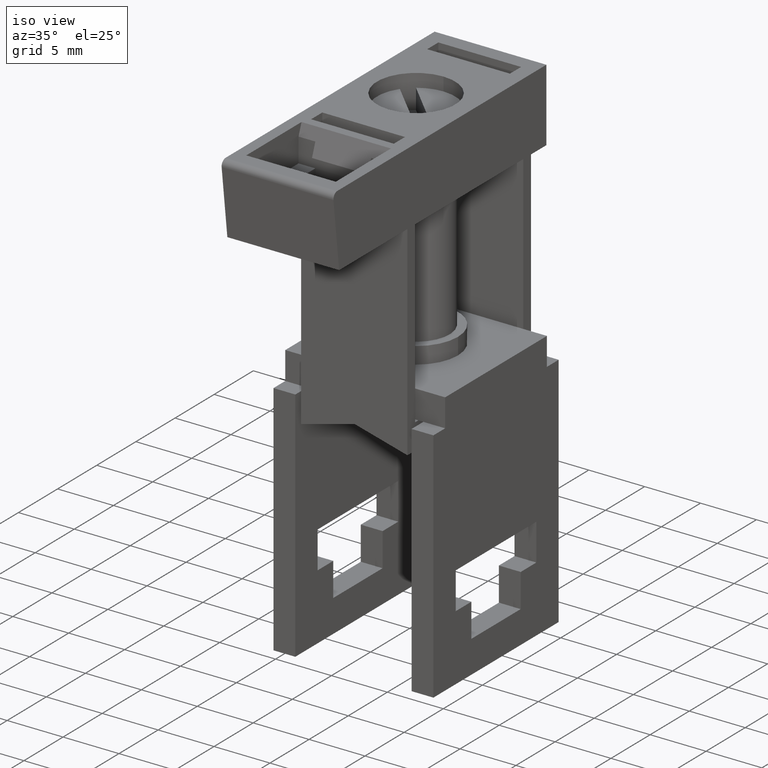
[diagram: clean part render]
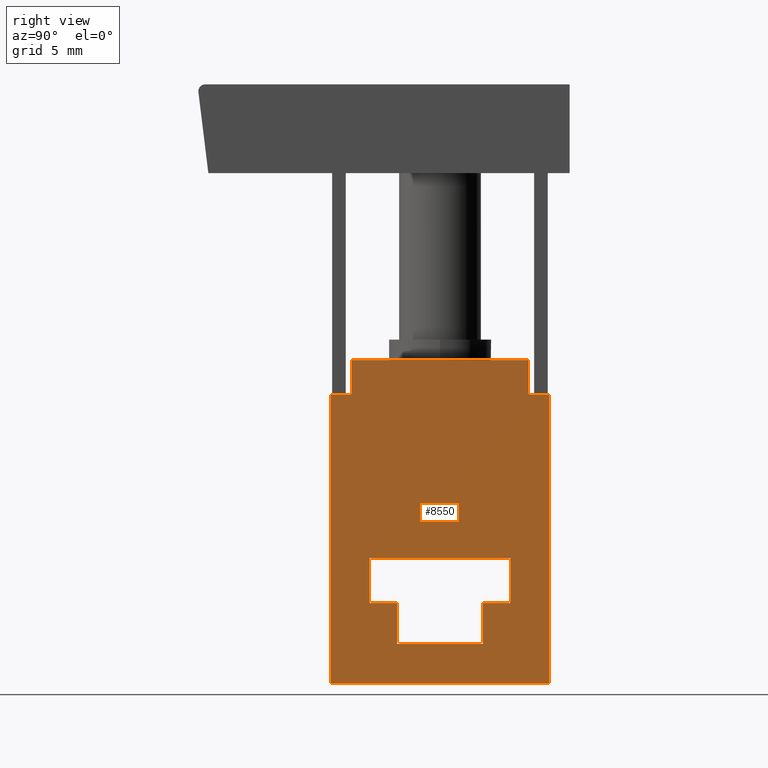
[diagram: tour spotlight — one face highlighted and labeled with its STEP entity id]
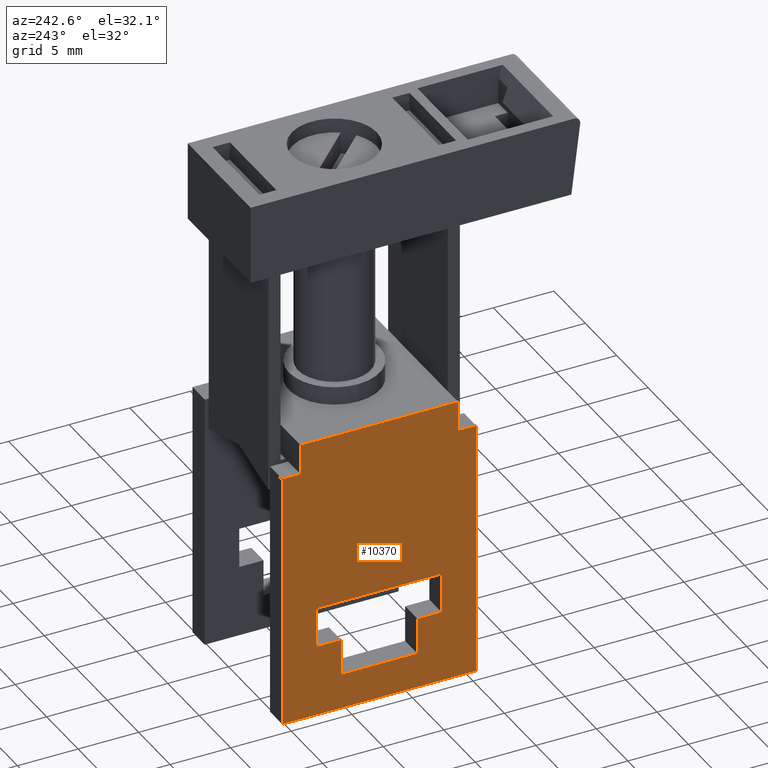
[diagram: tour spotlight — one face highlighted and labeled with its STEP entity id]
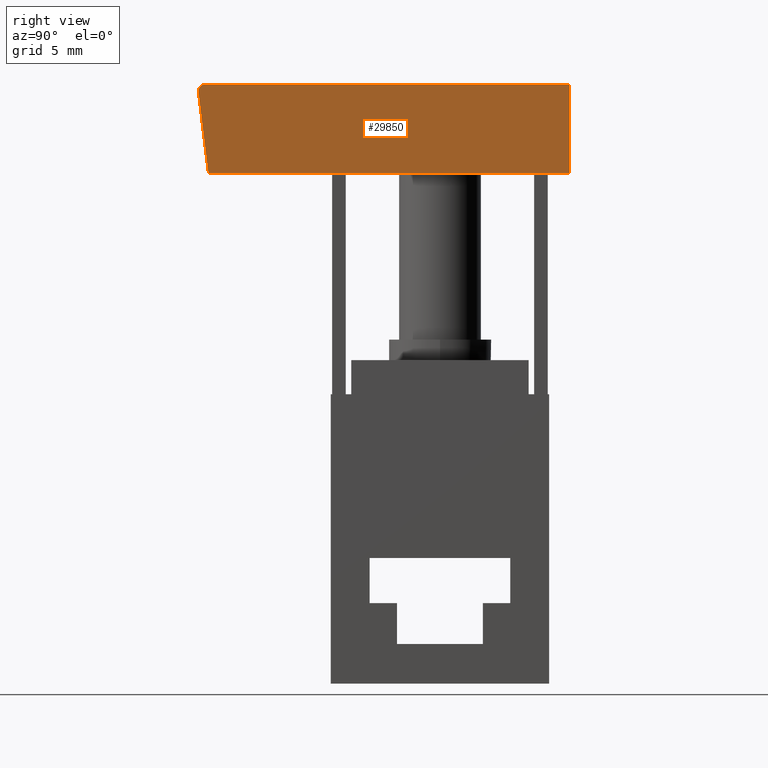
[diagram: tour spotlight — one face highlighted and labeled with its STEP entity id]
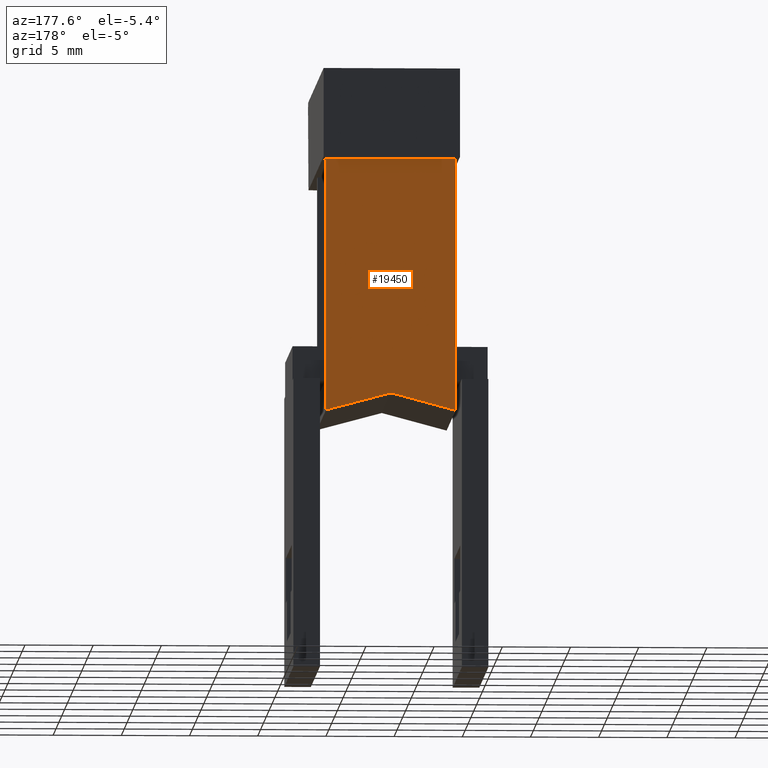
[diagram: tour spotlight — one face highlighted and labeled with its STEP entity id]
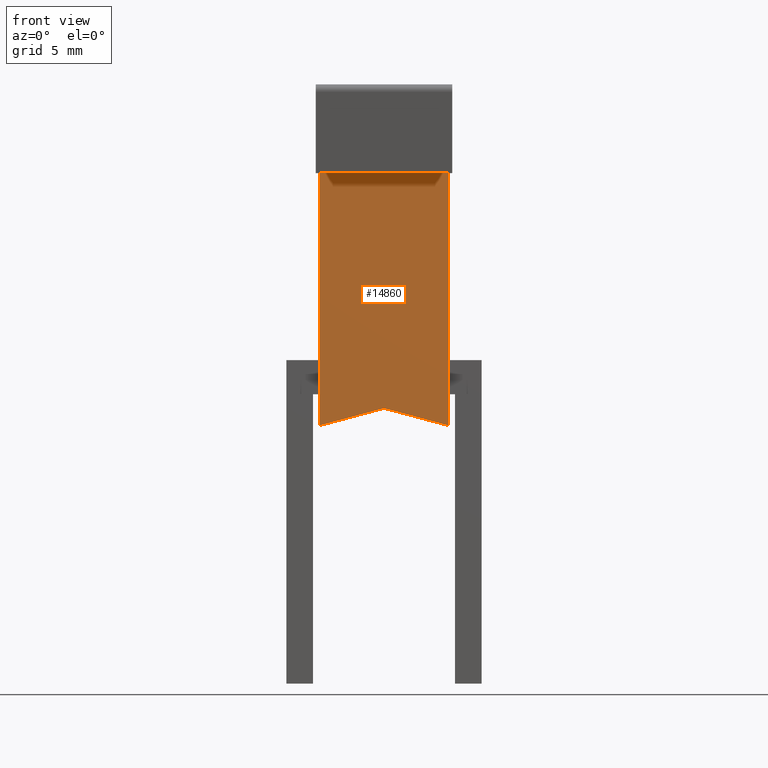
[diagram: tour spotlight — one face highlighted and labeled with its STEP entity id]
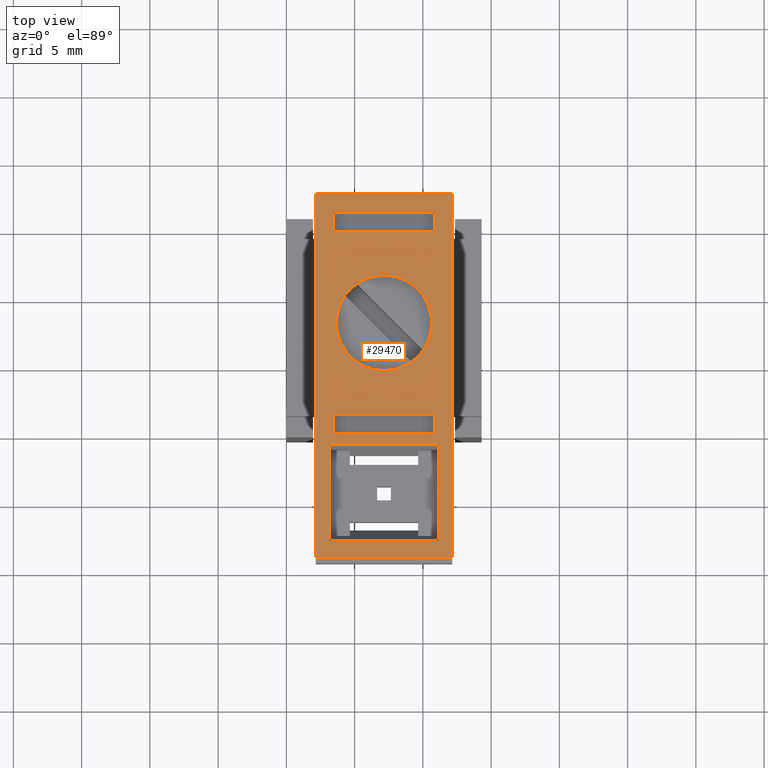
[diagram: tour spotlight — one face highlighted and labeled with its STEP entity id]
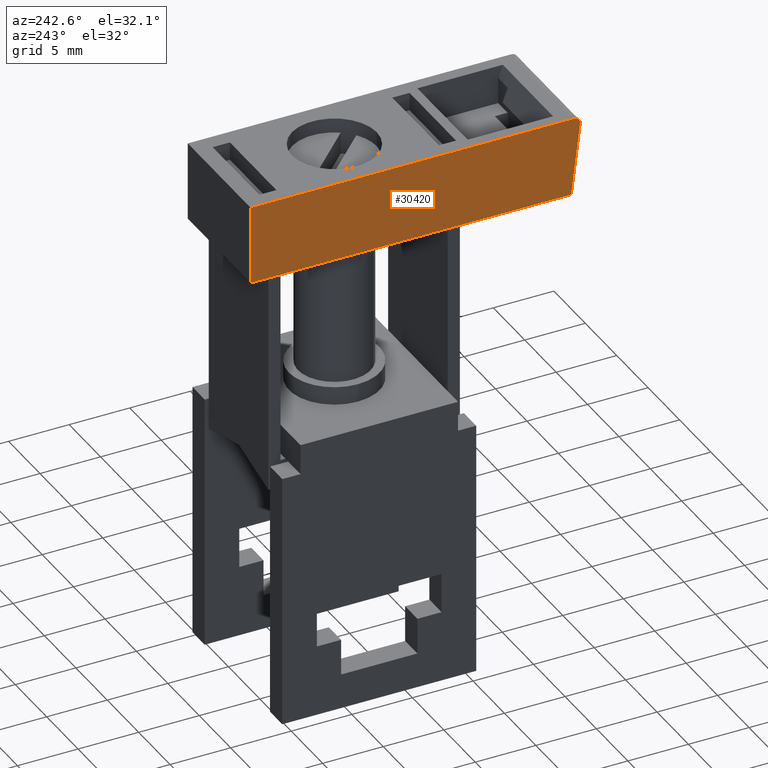
[diagram: tour spotlight — one face highlighted and labeled with its STEP entity id]
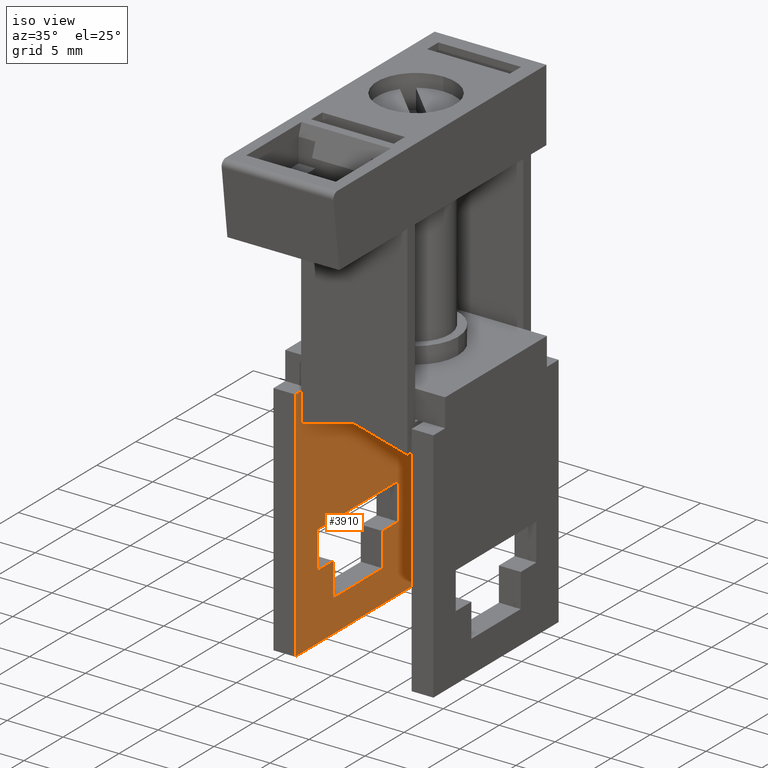
[diagram: tour spotlight — one face highlighted and labeled with its STEP entity id]
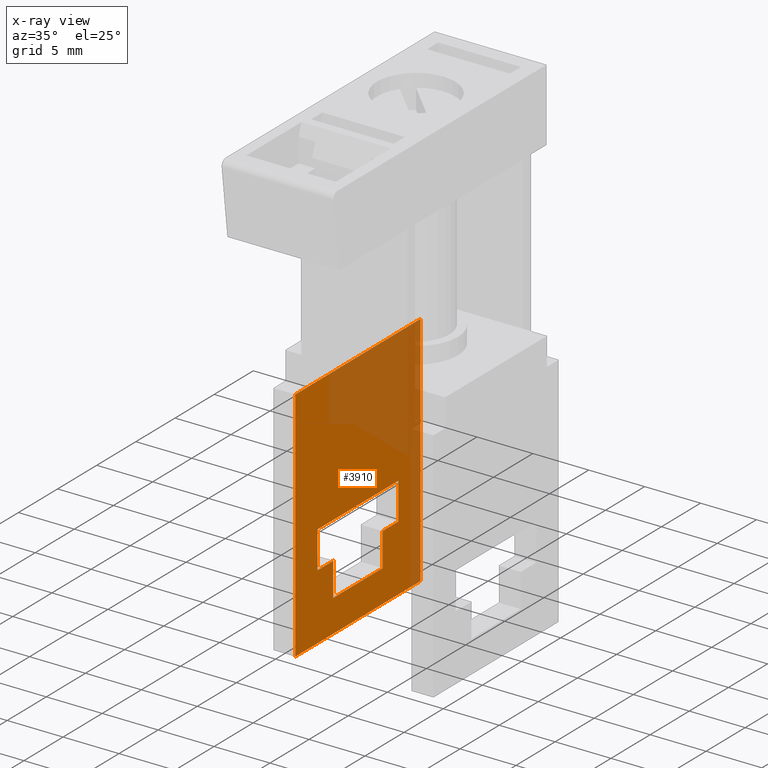
[diagram: x-ray of the same camera — body ghosted, this tour face saturated]
A machine part: a face-by-face anatomy tour. The part has 100 B-rep faces; the first image is the clean iso view, then the 8 largest visible faces are spotlighted one at a time (largest first), each with its STEP entity span.

Face 1 — right view, entity #8550. In plain terms, the highlighted planar face has unit normal (1, -0, 0).
Definition (entity closure, byte-faithful):
#620=CARTESIAN_POINT('',(-19.5556108469939,-3.99999999999995,8.));
#630=VERTEX_POINT('',#620);
#660=CARTESIAN_POINT('',(-19.5556108469939,0.,8.));
#670=DIRECTION('',(-7.35044209406991E-15,1.,0.));
#680=VECTOR('',#670,1.);
#690=LINE('',#660,#680);
#700=CARTESIAN_POINT('',(-19.5556108469937,-25.2,8.));
#710=VERTEX_POINT('',#700);
#720=EDGE_CURVE('',#710,#630,#690,.T.);
#4610=CARTESIAN_POINT('',(-19.5556108469939,-3.99999999999995,6.5));
#4620=VERTEX_POINT('',#4610);
#4960=CARTESIAN_POINT('',(-19.5556108469939,-1.5,6.5));
#4970=VERTEX_POINT('',#4960);
#5000=CARTESIAN_POINT('',(-19.5556108469939,0.,6.5));
#5010=DIRECTION('',(-7.35044209406991E-15,1.,0.));
#5020=VECTOR('',#5010,1.);
#5030=LINE('',#5000,#5020);
#5040=EDGE_CURVE('',#4620,#4970,#5030,.T.);
#5210=CARTESIAN_POINT('',(-19.5556108469939,0.,-8.));
#5220=DIRECTION('',(7.35044209406991E-15,-1.,0.));
#5230=VECTOR('',#5220,1.);
#5240=LINE('',#5210,#5230);
#5250=CARTESIAN_POINT('',(-19.5556108469939,-3.99999999999995,-8.));
#5260=VERTEX_POINT('',#5250);
#5270=CARTESIAN_POINT('',(-19.5556108469937,-25.2,-8.));
#5280=VERTEX_POINT('',#5270);
#5290=EDGE_CURVE('',#5260,#5280,#5240,.T.);
#5630=CARTESIAN_POINT('',(-19.5556108469937,-22.2999999999999,3.15));
#5640=VERTEX_POINT('',#5630);
#5670=CARTESIAN_POINT('',(-19.5556108469939,0.,3.15));
#5680=DIRECTION('',(7.35044209406991E-15,-1.,0.));
#5690=VECTOR('',#5680,1.);
#5700=LINE('',#5670,#5690);
#5710=CARTESIAN_POINT('',(-19.5556108469938,-19.2999999999999,3.15));
#5720=VERTEX_POINT('',#5710);
#5730=EDGE_CURVE('',#5720,#5640,#5700,.T.);
#6360=CARTESIAN_POINT('',(-19.5556108469939,-1.5,-6.5));
#6370=VERTEX_POINT('',#6360);
#6760=CARTESIAN_POINT('',(-19.5556108469939,-3.99999999999995,-6.5));
#6770=VERTEX_POINT('',#6760);
#6800=CARTESIAN_POINT('',(-19.5556108469939,0.,-6.5));
#6810=DIRECTION('',(-7.35044209406991E-15,1.,0.));
#6820=VECTOR('',#6810,1.);
#6830=LINE('',#6800,#6820);
#6840=EDGE_CURVE('',#6770,#6370,#6830,.T.);
#7140=CARTESIAN_POINT('',(-19.5556108469939,-1.5,0.));
#7150=DIRECTION('',(0.,0.,-1.));
#7160=VECTOR('',#7150,1.);
#7170=LINE('',#7140,#7160);
#7180=EDGE_CURVE('',#4970,#6370,#7170,.T.);
#7680=CARTESIAN_POINT('',(-19.5556108469937,-22.3,0.));
#7690=DIRECTION('',(1.,7.35044209406991E-15,0.));
#7700=DIRECTION('',(7.35044209406991E-15,-1.,0.));
#7710=AXIS2_PLACEMENT_3D('',#7680,#7690,#7700);
#7720=PLANE('',#7710);
#7730=CARTESIAN_POINT('',(-19.5556108469938,-15.9999999999999,0.));
#7740=DIRECTION('',(0.,0.,1.));
#7750=VECTOR('',#7740,1.);
#7760=LINE('',#7730,#7750);
#7770=CARTESIAN_POINT('',(-19.5556108469938,-15.9999999999999,
-5.14999999999998));
#7780=VERTEX_POINT('',#7770);
#7790=CARTESIAN_POINT('',(-19.5556108469938,-15.9999999999999,
5.15000000000003));
#7800=VERTEX_POINT('',#7790);
#7810=EDGE_CURVE('',#7780,#7800,#7760,.T.);
#7820=ORIENTED_EDGE('',*,*,#7810,.F.);
#7830=CARTESIAN_POINT('',(-19.5556108469939,0.,5.15000000000003));
#7840=DIRECTION('',(7.35044209406991E-15,-1.,0.));
#7850=VECTOR('',#7840,1.);
#7860=LINE('',#7830,#7850);
#7870=CARTESIAN_POINT('',(-19.5556108469938,-19.2999999999999,
5.15000000000003));
#7880=VERTEX_POINT('',#7870);
#7890=EDGE_CURVE('',#7800,#7880,#7860,.T.);
#7900=ORIENTED_EDGE('',*,*,#7890,.F.);
#7910=CARTESIAN_POINT('',(-19.5556108469938,-19.2999999999999,0.));
#7920=DIRECTION('',(0.,0.,-1.));
#7930=VECTOR('',#7920,1.);
#7940=LINE('',#7910,#7930);
#7950=EDGE_CURVE('',#7880,#5720,#7940,.T.);
#7960=ORIENTED_EDGE('',*,*,#7950,.F.);
#7970=ORIENTED_EDGE('',*,*,#5730,.F.);
#7980=CARTESIAN_POINT('',(-19.5556108469937,-22.2999999999999,0.));
#7990=DIRECTION('',(0.,0.,-1.));
#8000=VECTOR('',#7990,1.);
#8010=LINE('',#7980,#8000);
#8020=CARTESIAN_POINT('',(-19.5556108469937,-22.2999999999999,
-3.14999999999999));
#8030=VERTEX_POINT('',#8020);
#8040=EDGE_CURVE('',#5640,#8030,#8010,.T.);
#8050=ORIENTED_EDGE('',*,*,#8040,.F.);
#8060=CARTESIAN_POINT('',(-19.5556108469939,0.,-3.15000000000006));
#8070=DIRECTION('',(-7.35044209406991E-15,1.,-2.8421709430404E-15));
#8080=VECTOR('',#8070,1.);
#8090=LINE('',#8060,#8080);
#8100=CARTESIAN_POINT('',(-19.5556108469938,-19.2999999999999,-3.15));
#8110=VERTEX_POINT('',#8100);
#8120=EDGE_CURVE('',#8030,#8110,#8090,.T.);
#8130=ORIENTED_EDGE('',*,*,#8120,.F.);
#8140=CARTESIAN_POINT('',(-19.5556108469938,-19.2999999999999,0.));
#8150=DIRECTION('',(0.,0.,-1.));
#8160=VECTOR('',#8150,1.);
#8170=LINE('',#8140,#8160);
#8180=CARTESIAN_POINT('',(-19.5556108469938,-19.2999999999999,
-5.14999999999998));
#8190=VERTEX_POINT('',#8180);
#8200=EDGE_CURVE('',#8110,#8190,#8170,.T.);
#8210=ORIENTED_EDGE('',*,*,#8200,.F.);
#8220=CARTESIAN_POINT('',(-19.5556108469939,0.,-5.14999999999998));
#8230=DIRECTION('',(-7.35044209406991E-15,1.,0.));
#8240=VECTOR('',#8230,1.);
#8250=LINE('',#8220,#8240);
#8260=EDGE_CURVE('',#8190,#7780,#8250,.T.);
#8270=ORIENTED_EDGE('',*,*,#8260,.F.);
#8280=EDGE_LOOP('',(#8270,#8210,#8130,#8050,#7970,#7960,#7900,#7820));
#8290=FACE_BOUND('',#8280,.T.);
#8300=ORIENTED_EDGE('',*,*,#720,.F.);
#8310=CARTESIAN_POINT('',(-19.5556108469937,-3.99999999999995,0.));
#8320=DIRECTION('',(0.,0.,1.));
#8330=VECTOR('',#8320,1.);
#8340=LINE('',#8310,#8330);
#8350=EDGE_CURVE('',#4620,#630,#8340,.T.);
#8360=ORIENTED_EDGE('',*,*,#8350,.T.);
#8370=ORIENTED_EDGE('',*,*,#5040,.F.);
#8380=ORIENTED_EDGE('',*,*,#7180,.F.);
#8390=ORIENTED_EDGE('',*,*,#6840,.T.);
#8400=CARTESIAN_POINT('',(-19.5556108469937,-3.99999999999995,0.));
#8410=DIRECTION('',(0.,0.,1.));
#8420=VECTOR('',#8410,1.);
#8430=LINE('',#8400,#8420);
#8440=EDGE_CURVE('',#5260,#6770,#8430,.T.);
#8450=ORIENTED_EDGE('',*,*,#8440,.T.);
#8460=ORIENTED_EDGE('',*,*,#5290,.F.);
#8470=CARTESIAN_POINT('',(-19.5556108469937,-25.2,0.));
#8480=DIRECTION('',(0.,0.,1.));
#8490=VECTOR('',#8480,1.);
#8500=LINE('',#8470,#8490);
#8510=EDGE_CURVE('',#5280,#710,#8500,.T.);
#8520=ORIENTED_EDGE('',*,*,#8510,.F.);
#8530=EDGE_LOOP('',(#8520,#8460,#8450,#8390,#8380,#8370,#8360,#8300));
#8540=FACE_OUTER_BOUND('',#8530,.T.);
#8550=ADVANCED_FACE('',(#8290,#8540),#7720,.T.);

Face 2 — auxiliary view, entity #10370. In plain terms, the highlighted planar face has unit normal (-1, 0, 0).
Definition (entity closure, byte-faithful):
#60=CARTESIAN_POINT('',(-33.8556108469937,0.,8.));
#70=DIRECTION('',(0.,-1.,0.));
#80=VECTOR('',#70,1.);
#90=LINE('',#60,#80);
#100=CARTESIAN_POINT('',(-33.8556108469937,-4.00000000000005,8.));
#110=VERTEX_POINT('',#100);
#120=CARTESIAN_POINT('',(-33.8556108469937,-25.2,8.));
#130=VERTEX_POINT('',#120);
#140=EDGE_CURVE('',#110,#130,#90,.T.);
#1040=CARTESIAN_POINT('',(-33.8556108469937,-4.00000000000005,0.));
#1050=DIRECTION('',(0.,0.,1.));
#1060=VECTOR('',#1050,1.);
#1070=LINE('',#1040,#1060);
#1080=CARTESIAN_POINT('',(-33.8556108469937,-4.00000000000005,6.5));
#1090=VERTEX_POINT('',#1080);
#1100=EDGE_CURVE('',#1090,#110,#1070,.T.);
#2530=CARTESIAN_POINT('',(-33.8556108469937,-19.3,0.));
#2540=DIRECTION('',(0.,0.,1.));
#2550=VECTOR('',#2540,1.);
#2560=LINE('',#2530,#2550);
#2570=CARTESIAN_POINT('',(-33.8556108469937,-19.3,3.15));
#2580=VERTEX_POINT('',#2570);
#2590=CARTESIAN_POINT('',(-33.8556108469937,-19.3,5.15000000000003));
#2600=VERTEX_POINT('',#2590);
#2610=EDGE_CURVE('',#2580,#2600,#2560,.T.);
#4840=CARTESIAN_POINT('',(-33.8556108469937,0.,6.5));
#4850=DIRECTION('',(0.,1.,0.));
#4860=VECTOR('',#4850,1.);
#4870=LINE('',#4840,#4860);
#4880=CARTESIAN_POINT('',(-33.8556108469937,-1.5,6.5));
#4890=VERTEX_POINT('',#4880);
#4900=EDGE_CURVE('',#1090,#4890,#4870,.T.);
#5960=CARTESIAN_POINT('',(-33.8556108469937,-25.2,-8.));
#5970=VERTEX_POINT('',#5960);
#6050=CARTESIAN_POINT('',(-33.8556108469937,-4.00000000000005,-8.));
#6060=VERTEX_POINT('',#6050);
#6090=CARTESIAN_POINT('',(-33.8556108469937,0.,-8.));
#6100=DIRECTION('',(0.,1.,0.));
#6110=VECTOR('',#6100,1.);
#6120=LINE('',#6090,#6110);
#6130=EDGE_CURVE('',#5970,#6060,#6120,.T.);
#6340=CARTESIAN_POINT('',(-33.8556108469937,-1.5,-6.5));
#6350=VERTEX_POINT('',#6340);
#6400=CARTESIAN_POINT('',(-33.8556108469937,0.,-6.5));
#6410=DIRECTION('',(0.,1.,0.));
#6420=VECTOR('',#6410,1.);
#6430=LINE('',#6400,#6420);
#6440=CARTESIAN_POINT('',(-33.8556108469937,-4.00000000000005,-6.5));
#6450=VERTEX_POINT('',#6440);
#6460=EDGE_CURVE('',#6450,#6350,#6430,.T.);
#7070=CARTESIAN_POINT('',(-33.8556108469937,-1.5,0.));
#7080=DIRECTION('',(0.,0.,1.));
#7090=VECTOR('',#7080,1.);
#7100=LINE('',#7070,#7090);
#7110=EDGE_CURVE('',#6350,#4890,#7100,.T.);
#7390=CARTESIAN_POINT('',(-33.8556108469937,-19.3,-5.14999999999998));
#7400=VERTEX_POINT('',#7390);
#7480=CARTESIAN_POINT('',(-33.8556108469937,-19.3,-3.15));
#7490=VERTEX_POINT('',#7480);
#7520=CARTESIAN_POINT('',(-33.8556108469937,-19.3,0.));
#7530=DIRECTION('',(0.,0.,1.));
#7540=VECTOR('',#7530,1.);
#7550=LINE('',#7520,#7540);
#7560=EDGE_CURVE('',#7400,#7490,#7550,.T.);
#8680=CARTESIAN_POINT('',(-33.8556108469937,-16.0000000000001,0.));
#8690=DIRECTION('',(0.,0.,-1.));
#8700=VECTOR('',#8690,1.);
#8710=LINE('',#8680,#8700);
#8720=CARTESIAN_POINT('',(-33.8556108469937,-16.0000000000001,
5.15000000000003));
#8730=VERTEX_POINT('',#8720);
#8740=CARTESIAN_POINT('',(-33.8556108469937,-16.0000000000001,
-5.14999999999998));
#8750=VERTEX_POINT('',#8740);
#8760=EDGE_CURVE('',#8730,#8750,#8710,.T.);
#9430=CARTESIAN_POINT('',(-33.8556108469937,-25.2,0.));
#9440=DIRECTION('',(0.,0.,-1.));
#9450=VECTOR('',#9440,1.);
#9460=LINE('',#9430,#9450);
#9470=EDGE_CURVE('',#130,#5970,#9460,.T.);
#9780=CARTESIAN_POINT('',(-33.8556108469937,-19.3,0.));
#9790=DIRECTION('',(-1.,0.,0.));
#9800=DIRECTION('',(0.,1.,0.));
#9810=AXIS2_PLACEMENT_3D('',#9780,#9790,#9800);
#9820=PLANE('',#9810);
#9830=CARTESIAN_POINT('',(-33.8556108469937,-22.3,0.));
#9840=DIRECTION('',(0.,0.,1.));
#9850=VECTOR('',#9840,1.);
#9860=LINE('',#9830,#9850);
#9870=CARTESIAN_POINT('',(-33.8556108469937,-22.3,-3.14999999999999));
#9880=VERTEX_POINT('',#9870);
#9890=CARTESIAN_POINT('',(-33.8556108469937,-22.3,3.15));
#9900=VERTEX_POINT('',#9890);
#9910=EDGE_CURVE('',#9880,#9900,#9860,.T.);
#9920=ORIENTED_EDGE('',*,*,#9910,.F.);
#9930=CARTESIAN_POINT('',(-33.8556108469937,0.,3.15));
#9940=DIRECTION('',(0.,1.,0.));
#9950=VECTOR('',#9940,1.);
#9960=LINE('',#9930,#9950);
#9970=EDGE_CURVE('',#9900,#2580,#9960,.T.);
#9980=ORIENTED_EDGE('',*,*,#9970,.F.);
#9990=ORIENTED_EDGE('',*,*,#2610,.F.);
#10000=CARTESIAN_POINT('',(-33.8556108469937,0.,5.15000000000003));
#10010=DIRECTION('',(0.,1.,0.));
#10020=VECTOR('',#10010,1.);
#10030=LINE('',#10000,#10020);
#10040=EDGE_CURVE('',#2600,#8730,#10030,.T.);
#10050=ORIENTED_EDGE('',*,*,#10040,.F.);
#10060=ORIENTED_EDGE('',*,*,#8760,.F.);
#10070=CARTESIAN_POINT('',(-33.8556108469937,0.,-5.14999999999998));
#10080=DIRECTION('',(0.,-1.,0.));
#10090=VECTOR('',#10080,1.);
#10100=LINE('',#10070,#10090);
#10110=EDGE_CURVE('',#8750,#7400,#10100,.T.);
#10120=ORIENTED_EDGE('',*,*,#10110,.F.);
#10130=ORIENTED_EDGE('',*,*,#7560,.F.);
#10140=CARTESIAN_POINT('',(-33.8556108469937,0.,-3.15000000000006));
#10150=DIRECTION('',(0.,-1.,2.8421709430404E-15));
#10160=VECTOR('',#10150,1.);
#10170=LINE('',#10140,#10160);
#10180=EDGE_CURVE('',#7490,#9880,#10170,.T.);
#10190=ORIENTED_EDGE('',*,*,#10180,.F.);
#10200=EDGE_LOOP('',(#10190,#10130,#10120,#10060,#10050,#9990,#9980,
#9920));
#10210=FACE_BOUND('',#10200,.T.);
#10220=ORIENTED_EDGE('',*,*,#9470,.F.);
#10230=ORIENTED_EDGE('',*,*,#6130,.F.);
#10240=CARTESIAN_POINT('',(-33.8556108469937,-4.00000000000005,0.));
#10250=DIRECTION('',(0.,0.,1.));
#10260=VECTOR('',#10250,1.);
#10270=LINE('',#10240,#10260);
#10280=EDGE_CURVE('',#6060,#6450,#10270,.T.);
#10290=ORIENTED_EDGE('',*,*,#10280,.F.);
#10300=ORIENTED_EDGE('',*,*,#6460,.F.);
#10310=ORIENTED_EDGE('',*,*,#7110,.F.);
#10320=ORIENTED_EDGE('',*,*,#4900,.T.);
#10330=ORIENTED_EDGE('',*,*,#1100,.F.);
#10340=ORIENTED_EDGE('',*,*,#140,.F.);
#10350=EDGE_LOOP('',(#10340,#10330,#10320,#10310,#10300,#10290,#10230,
#10220));
#10360=FACE_OUTER_BOUND('',#10350,.T.);
#10370=ADVANCED_FACE('',(#10210,#10360),#9820,.T.);

Face 3 — right view, entity #29850. In plain terms, the highlighted planar face has unit normal (-1, 0, 0).
Definition (entity closure, byte-faithful):
#21250=CARTESIAN_POINT('',(-21.7056108469937,12.2,16.967047547312));
#21260=VERTEX_POINT('',#21250);
#21310=CARTESIAN_POINT('',(-21.7056108469937,12.2,-36.1472590760953));
#21320=DIRECTION('',(-2.62457961965826E-32,1.23259516440783E-32,1.));
#21330=VECTOR('',#21320,1.);
#21340=LINE('',#21310,#21330);
#21350=CARTESIAN_POINT('',(-21.7056108469937,12.2,-9.5));
#21360=VERTEX_POINT('',#21350);
#21370=EDGE_CURVE('',#21360,#21260,#21340,.T.);
#29190=CARTESIAN_POINT('',(-21.7056108469937,18.7,17.1999999999997));
#29200=VERTEX_POINT('',#29190);
#29350=CARTESIAN_POINT('',(-21.7056108469937,18.7,-9.5));
#29360=VERTEX_POINT('',#29350);
#29390=CARTESIAN_POINT('',(-21.7056108469937,18.7,-36.1472590760953));
#29400=DIRECTION('',(-2.62457961965826E-32,1.23259516440783E-32,1.));
#29410=VECTOR('',#29400,1.);
#29420=LINE('',#29390,#29410);
#29430=EDGE_CURVE('',#29360,#29200,#29420,.T.);
#29550=CARTESIAN_POINT('',(-21.7056108469937,-24.6874456012687,
-36.1472590760953));
#29560=DIRECTION('',(-1.,4.93038065763132E-32,-2.62457961965826E-32));
#29570=DIRECTION('',(-2.62457961965826E-32,1.23259516440783E-32,1.));
#29580=AXIS2_PLACEMENT_3D('',#29550,#29560,#29570);
#29590=PLANE('',#29580);
#29600=ORIENTED_EDGE('',*,*,#21370,.F.);
#29610=CARTESIAN_POINT('',(-21.7056108469937,-24.6874456012687,
12.4378387363323));
#29620=DIRECTION('',(4.57377455289666E-32,0.992546151641328,
0.121869343405098));
#29630=VECTOR('',#29620,1.);
#29640=LINE('',#29610,#29630);
#29650=CARTESIAN_POINT('',(-21.7056108469937,18.1390653282975,
17.6962730758204));
#29660=VERTEX_POINT('',#29650);
#29670=EDGE_CURVE('',#21260,#29660,#29640,.T.);
#29680=ORIENTED_EDGE('',*,*,#29670,.F.);
#29690=CARTESIAN_POINT('',(-21.7056108469937,18.2,17.1999999999997));
#29700=DIRECTION('',(1.,-4.93038065763132E-32,-2.62457961965826E-32));
#29710=DIRECTION('',(-4.93038065763132E-32,-1.,0.));
#29720=AXIS2_PLACEMENT_3D('',#29690,#29700,#29710);
#29730=CIRCLE('',#29720,0.5);
#29740=EDGE_CURVE('',#29200,#29660,#29730,.T.);
#29750=ORIENTED_EDGE('',*,*,#29740,.T.);
#29760=ORIENTED_EDGE('',*,*,#29430,.T.);
#29770=CARTESIAN_POINT('',(-21.7056108469937,-24.6874456012687,-9.5));
#29780=DIRECTION('',(-4.93038065763132E-32,-1.,1.23259516440783E-32));
#29790=VECTOR('',#29780,1.);
#29800=LINE('',#29770,#29790);
#29810=EDGE_CURVE('',#29360,#21360,#29800,.T.);
#29820=ORIENTED_EDGE('',*,*,#29810,.F.);
#29830=EDGE_LOOP('',(#29820,#29760,#29750,#29680,#29600));
#29840=FACE_OUTER_BOUND('',#29830,.T.);
#29850=ADVANCED_FACE('',(#29840),#29590,.F.);

Face 4 — auxiliary view, entity #19450. In plain terms, the highlighted planar face has unit normal (0, 1, -0).
Definition (entity closure, byte-faithful):
#15510=CARTESIAN_POINT('',(-21.9556108469937,-6.30000000000001,-7.9));
#15520=VERTEX_POINT('',#15510);
#15550=CARTESIAN_POINT('',(-21.9556108469937,-6.30000000000001,-7.9));
#15560=DIRECTION('',(-0.965925826289068,0.258819045102521,
2.53514923777986E-32));
#15570=VECTOR('',#15560,1.);
#15580=LINE('',#15550,#15570);
#15590=CARTESIAN_POINT('',(-26.7056108469937,-5.02724133595218,-7.9));
#15600=VERTEX_POINT('',#15590);
#15610=EDGE_CURVE('',#15520,#15600,#15580,.T.);
#16060=CARTESIAN_POINT('',(-21.9556108469937,12.2,-7.9));
#16070=VERTEX_POINT('',#16060);
#16100=CARTESIAN_POINT('',(-21.9556108469937,-15.8,-7.9));
#16110=DIRECTION('',(0.,1.,0.));
#16120=VECTOR('',#16110,1.);
#16130=LINE('',#16100,#16120);
#16140=EDGE_CURVE('',#15520,#16070,#16130,.T.);
#17280=CARTESIAN_POINT('',(-26.835020369545,-5.06191651301268,-7.9));
#17290=DIRECTION('',(-0.965925826289069,-0.25881904510252,
2.53514923777986E-32));
#17300=VECTOR('',#17290,1.);
#17310=LINE('',#17280,#17300);
#17320=CARTESIAN_POINT('',(-31.4556108469937,-6.30000000000001,-7.9));
#17330=VERTEX_POINT('',#17320);
#17340=EDGE_CURVE('',#15600,#17330,#17310,.T.);
#18500=CARTESIAN_POINT('',(-31.4556108469937,-14.7647238195899,-7.9));
#18510=DIRECTION('',(0.,1.,0.));
#18520=VECTOR('',#18510,1.);
#18530=LINE('',#18500,#18520);
#18540=CARTESIAN_POINT('',(-31.4556108469937,12.2,-7.9));
#18550=VERTEX_POINT('',#18540);
#18560=EDGE_CURVE('',#17330,#18550,#18530,.T.);
#19280=CARTESIAN_POINT('',(-2.82981630304778,-41.8239061243703,-7.9));
#19290=DIRECTION('',(-2.62457961965826E-32,0.,-1.));
#19300=DIRECTION('',(-1.,0.,2.62457961965826E-32));
#19310=AXIS2_PLACEMENT_3D('',#19280,#19290,#19300);
#19320=PLANE('',#19310);
#19330=ORIENTED_EDGE('',*,*,#18560,.T.);
#19340=ORIENTED_EDGE('',*,*,#17340,.T.);
#19350=ORIENTED_EDGE('',*,*,#15610,.T.);
#19360=ORIENTED_EDGE('',*,*,#16140,.F.);
#19370=CARTESIAN_POINT('',(7.105427357601E-15,12.2,-7.9));
#19380=DIRECTION('',(-1.,4.93038065763132E-32,2.62457961965826E-32));
#19390=VECTOR('',#19380,1.);
#19400=LINE('',#19370,#19390);
#19410=EDGE_CURVE('',#16070,#18550,#19400,.T.);
#19420=ORIENTED_EDGE('',*,*,#19410,.F.);
#19430=EDGE_LOOP('',(#19420,#19360,#19350,#19340,#19330));
#19440=FACE_OUTER_BOUND('',#19430,.T.);
#19450=ADVANCED_FACE('',(#19440),#19320,.T.);

Face 5 — front view, entity #14860. In plain terms, the highlighted planar face has unit normal (0, 1, -0).
Definition (entity closure, byte-faithful):
#14390=CARTESIAN_POINT('',(-2.82981630304778,-41.8239061243703,7.9));
#14400=DIRECTION('',(-2.62457961965826E-32,0.,-1.));
#14410=DIRECTION('',(-1.,0.,2.62457961965826E-32));
#14420=AXIS2_PLACEMENT_3D('',#14390,#14400,#14410);
#14430=PLANE('',#14420);
#14440=CARTESIAN_POINT('',(-21.9556108469937,-15.8,7.9));
#14450=DIRECTION('',(0.,1.,0.));
#14460=VECTOR('',#14450,1.);
#14470=LINE('',#14440,#14460);
#14480=CARTESIAN_POINT('',(-21.9556108469937,-6.30000000000001,7.9));
#14490=VERTEX_POINT('',#14480);
#14500=CARTESIAN_POINT('',(-21.9556108469937,12.2,7.9));
#14510=VERTEX_POINT('',#14500);
#14520=EDGE_CURVE('',#14490,#14510,#14470,.T.);
#14530=ORIENTED_EDGE('',*,*,#14520,.T.);
#14540=CARTESIAN_POINT('',(-2.82981630304777,-11.4247412026539,7.9));
#14550=DIRECTION('',(-0.965925826289068,0.258819045102521,
2.53514923777986E-32));
#14560=VECTOR('',#14550,1.);
#14570=LINE('',#14540,#14560);
#14580=CARTESIAN_POINT('',(-26.7056108469937,-5.02724133595218,7.9));
#14590=VERTEX_POINT('',#14580);
#14600=EDGE_CURVE('',#14490,#14590,#14570,.T.);
#14610=ORIENTED_EDGE('',*,*,#14600,.F.);
#14620=CARTESIAN_POINT('',(-2.82981630304777,1.37025853074952,7.9));
#14630=DIRECTION('',(-0.965925826289069,-0.25881904510252,
2.53514923777986E-32));
#14640=VECTOR('',#14630,1.);
#14650=LINE('',#14620,#14640);
#14660=CARTESIAN_POINT('',(-31.4556108469937,-6.30000000000001,7.9));
#14670=VERTEX_POINT('',#14660);
#14680=EDGE_CURVE('',#14590,#14670,#14650,.T.);
#14690=ORIENTED_EDGE('',*,*,#14680,.F.);
#14700=CARTESIAN_POINT('',(-31.4556108469937,-14.7647238195899,7.9));
#14710=DIRECTION('',(0.,1.,0.));
#14720=VECTOR('',#14710,1.);
#14730=LINE('',#14700,#14720);
#14740=CARTESIAN_POINT('',(-31.4556108469937,12.2,7.9));
#14750=VERTEX_POINT('',#14740);
#14760=EDGE_CURVE('',#14670,#14750,#14730,.T.);
#14770=ORIENTED_EDGE('',*,*,#14760,.F.);
#14780=CARTESIAN_POINT('',(7.105427357601E-15,12.2,7.9));
#14790=DIRECTION('',(-1.,4.93038065763132E-32,2.62457961965826E-32));
#14800=VECTOR('',#14790,1.);
#14810=LINE('',#14780,#14800);
#14820=EDGE_CURVE('',#14510,#14750,#14810,.T.);
#14830=ORIENTED_EDGE('',*,*,#14820,.T.);
#14840=EDGE_LOOP('',(#14830,#14770,#14690,#14610,#14530));
#14850=FACE_OUTER_BOUND('',#14840,.T.);
#14860=ADVANCED_FACE('',(#14850),#14430,.F.);

Face 6 — top view, entity #29470. In plain terms, the highlighted planar face has unit normal (-0, -0, -1).
Definition (entity closure, byte-faithful):
#18920=CARTESIAN_POINT('',(-30.4056108469937,18.7,8.12500019845772));
#18930=VERTEX_POINT('',#18920);
#19080=CARTESIAN_POINT('',(-23.0056108469937,18.7,8.12500019845772));
#19090=VERTEX_POINT('',#19080);
#19120=CARTESIAN_POINT('',(7.105427357601E-15,18.7,8.12500019845772));
#19130=DIRECTION('',(-1.,4.93038065763132E-32,2.62457961965826E-32));
#19140=VECTOR('',#19130,1.);
#19150=LINE('',#19120,#19140);
#19160=EDGE_CURVE('',#19090,#18930,#19150,.T.);
#25010=CARTESIAN_POINT('',(-30.7056108469937,18.7,8.92426548461434));
#25020=VERTEX_POINT('',#25010);
#25050=CARTESIAN_POINT('',(-26.7056108469937,18.7,8.92426548461434));
#25060=DIRECTION('',(1.,-4.93038065763132E-32,-2.62457961965826E-32));
#25070=VECTOR('',#25060,1.);
#25080=LINE('',#25050,#25070);
#25090=CARTESIAN_POINT('',(-22.7056108469937,18.7,8.92426548461434));
#25100=VERTEX_POINT('',#25090);
#25110=EDGE_CURVE('',#25020,#25100,#25080,.T.);
#27410=CARTESIAN_POINT('',(-30.7056108469937,18.7,15.9757345153856));
#27420=VERTEX_POINT('',#27410);
#27450=CARTESIAN_POINT('',(-30.7056108469937,18.7,-36.1472590760953));
#27460=DIRECTION('',(-2.62457961965826E-32,1.23259516440783E-32,1.));
#27470=VECTOR('',#27460,1.);
#27480=LINE('',#27450,#27470);
#27490=EDGE_CURVE('',#25020,#27420,#27480,.T.);
#27690=CARTESIAN_POINT('',(-26.7056108469937,18.7,15.9757345153856));
#27700=DIRECTION('',(-1.,4.93038065763132E-32,2.62457961965826E-32));
#27710=VECTOR('',#27700,1.);
#27720=LINE('',#27690,#27710);
#27730=CARTESIAN_POINT('',(-22.7056108469937,18.7,15.9757345153856));
#27740=VERTEX_POINT('',#27730);
#27750=EDGE_CURVE('',#27740,#27420,#27720,.T.);
#28230=CARTESIAN_POINT('',(-30.8806108469937,18.7,3.762342457517));
#28240=DIRECTION('',(-4.93038065763132E-32,-1.,1.23259516440783E-32));
#28250=DIRECTION('',(-2.62457961965826E-32,1.23259516440783E-32,1.));
#28260=AXIS2_PLACEMENT_3D('',#28230,#28240,#28250);
#28270=PLANE('',#28260);
#28280=ORIENTED_EDGE('',*,*,#19160,.T.);
#28290=CARTESIAN_POINT('',(-23.0056108469937,18.7,3.5527136788005E-15));
#28300=DIRECTION('',(-2.62457961965826E-32,1.23259516440783E-32,1.));
#28310=VECTOR('',#28300,1.);
#28320=LINE('',#28290,#28310);
#28330=CARTESIAN_POINT('',(-23.0056108469937,18.7,6.69999980154227));
#28340=VERTEX_POINT('',#28330);
#28350=EDGE_CURVE('',#28340,#19090,#28320,.T.);
#28360=ORIENTED_EDGE('',*,*,#28350,.T.);
#28370=CARTESIAN_POINT('',(7.105427357601E-15,18.7,6.69999980154227));
#28380=DIRECTION('',(1.,-4.93038065763132E-32,-2.62457961965826E-32));
#28390=VECTOR('',#28380,1.);
#28400=LINE('',#28370,#28390);
#28410=CARTESIAN_POINT('',(-30.4056108469937,18.7,6.69999980154227));
#28420=VERTEX_POINT('',#28410);
#28430=EDGE_CURVE('',#28420,#28340,#28400,.T.);
#28440=ORIENTED_EDGE('',*,*,#28430,.T.);
#28450=CARTESIAN_POINT('',(-30.4056108469937,18.7,3.5527136788005E-15));
#28460=DIRECTION('',(2.62457961965826E-32,-1.23259516440783E-32,-1.));
#28470=VECTOR('',#28460,1.);
#28480=LINE('',#28450,#28470);
#28490=EDGE_CURVE('',#18930,#28420,#28480,.T.);
#28500=ORIENTED_EDGE('',*,*,#28490,.T.);
#28510=EDGE_LOOP('',(#28500,#28440,#28360,#28280));
#28520=FACE_BOUND('',#28510,.T.);
#28530=CARTESIAN_POINT('',(-23.0056108469937,18.7,3.5527136788005E-15));
#28540=DIRECTION('',(-2.62457961965826E-32,1.23259516440783E-32,1.));
#28550=VECTOR('',#28540,1.);
#28560=LINE('',#28530,#28550);
#28570=CARTESIAN_POINT('',(-23.0056108469937,18.7,-8.125));
#28580=VERTEX_POINT('',#28570);
#28590=CARTESIAN_POINT('',(-23.0056108469937,18.7,-6.7));
#28600=VERTEX_POINT('',#28590);
#28610=EDGE_CURVE('',#28580,#28600,#28560,.T.);
#28620=ORIENTED_EDGE('',*,*,#28610,.T.);
#28630=CARTESIAN_POINT('',(7.105427357601E-15,18.7,-8.125));
#28640=DIRECTION('',(1.,-4.93038065763132E-32,-2.62457961965826E-32));
#28650=VECTOR('',#28640,1.);
#28660=LINE('',#28630,#28650);
#28670=CARTESIAN_POINT('',(-30.4056108469937,18.7,-8.125));
#28680=VERTEX_POINT('',#28670);
#28690=EDGE_CURVE('',#28680,#28580,#28660,.T.);
#28700=ORIENTED_EDGE('',*,*,#28690,.T.);
#28710=CARTESIAN_POINT('',(-30.4056108469937,18.7,3.5527136788005E-15));
#28720=DIRECTION('',(2.62457961965826E-32,-1.23259516440783E-32,-1.));
#28730=VECTOR('',#28720,1.);
#28740=LINE('',#28710,#28730);
#28750=CARTESIAN_POINT('',(-30.4056108469937,18.7,-6.7));
#28760=VERTEX_POINT('',#28750);
#28770=EDGE_CURVE('',#28760,#28680,#28740,.T.);
#28780=ORIENTED_EDGE('',*,*,#28770,.T.);
#28790=CARTESIAN_POINT('',(7.105427357601E-15,18.7,-6.7));
#28800=DIRECTION('',(-1.,4.93038065763132E-32,2.62457961965826E-32));
#28810=VECTOR('',#28800,1.);
#28820=LINE('',#28790,#28810);
#28830=EDGE_CURVE('',#28600,#28760,#28820,.T.);
#28840=ORIENTED_EDGE('',*,*,#28830,.T.);
#28850=EDGE_LOOP('',(#28840,#28780,#28700,#28620));
#28860=FACE_BOUND('',#28850,.T.);
#28870=CARTESIAN_POINT('',(-26.7056108469937,18.7,-3.5527136788005E-15))
;
#28880=DIRECTION('',(-4.93038065763132E-32,-1.,1.23259516440783E-32));
#28890=DIRECTION('',(2.62457961965826E-32,-1.23259516440783E-32,-1.));
#28900=AXIS2_PLACEMENT_3D('',#28870,#28880,#28890);
#28910=CIRCLE('',#28900,3.5);
#28920=CARTESIAN_POINT('',(-26.7056108469937,18.7,3.5));
#28930=VERTEX_POINT('',#28920);
#28940=CARTESIAN_POINT('',(-26.7056108469937,18.7,-3.5));
#28950=VERTEX_POINT('',#28940);
#28960=EDGE_CURVE('',#28930,#28950,#28910,.T.);
#28970=ORIENTED_EDGE('',*,*,#28960,.T.);
#28980=EDGE_CURVE('',#28950,#28930,#28910,.T.);
#28990=ORIENTED_EDGE('',*,*,#28980,.T.);
#29000=EDGE_LOOP('',(#28990,#28970));
#29010=FACE_BOUND('',#29000,.T.);
#29020=ORIENTED_EDGE('',*,*,#27750,.T.);
#29030=CARTESIAN_POINT('',(-22.7056108469937,18.7,-36.1472590760953));
#29040=DIRECTION('',(-2.62457961965826E-32,1.23259516440783E-32,1.));
#29050=VECTOR('',#29040,1.);
#29060=LINE('',#29030,#29050);
#29070=EDGE_CURVE('',#25100,#27740,#29060,.T.);
#29080=ORIENTED_EDGE('',*,*,#29070,.T.);
#29090=ORIENTED_EDGE('',*,*,#25110,.T.);
#29100=ORIENTED_EDGE('',*,*,#27490,.F.);
#29110=EDGE_LOOP('',(#29100,#29090,#29080,#29020));
#29120=FACE_BOUND('',#29110,.T.);
#29130=CARTESIAN_POINT('',(2.46519032881566E-32,18.7,17.1999999999997));
#29140=DIRECTION('',(1.,-4.93038065763132E-32,-2.62457961965826E-32));
#29150=VECTOR('',#29140,1.);
#29160=LINE('',#29130,#29150);
#29170=CARTESIAN_POINT('',(-31.7056108469937,18.7,17.1999999999997));
#29180=VERTEX_POINT('',#29170);
#29190=CARTESIAN_POINT('',(-21.7056108469937,18.7,17.1999999999997));
#29200=VERTEX_POINT('',#29190);
#29210=EDGE_CURVE('',#29180,#29200,#29160,.T.);
#29220=ORIENTED_EDGE('',*,*,#29210,.T.);
#29230=CARTESIAN_POINT('',(-31.7056108469937,18.7,-36.1472590760953));
#29240=DIRECTION('',(-2.62457961965826E-32,1.23259516440783E-32,1.));
#29250=VECTOR('',#29240,1.);
#29260=LINE('',#29230,#29250);
#29270=CARTESIAN_POINT('',(-31.7056108469937,18.7,-9.5));
#29280=VERTEX_POINT('',#29270);
#29290=EDGE_CURVE('',#29280,#29180,#29260,.T.);
#29300=ORIENTED_EDGE('',*,*,#29290,.T.);
#29310=CARTESIAN_POINT('',(-26.7056108469937,18.7,-9.5));
#29320=DIRECTION('',(-1.,4.93038065763132E-32,2.62457961965826E-32));
#29330=VECTOR('',#29320,1.);
#29340=LINE('',#29310,#29330);
#29350=CARTESIAN_POINT('',(-21.7056108469937,18.7,-9.5));
#29360=VERTEX_POINT('',#29350);
#29370=EDGE_CURVE('',#29360,#29280,#29340,.T.);
#29380=ORIENTED_EDGE('',*,*,#29370,.T.);
#29390=CARTESIAN_POINT('',(-21.7056108469937,18.7,-36.1472590760953));
#29400=DIRECTION('',(-2.62457961965826E-32,1.23259516440783E-32,1.));
#29410=VECTOR('',#29400,1.);
#29420=LINE('',#29390,#29410);
#29430=EDGE_CURVE('',#29360,#29200,#29420,.T.);
#29440=ORIENTED_EDGE('',*,*,#29430,.F.);
#29450=EDGE_LOOP('',(#29440,#29380,#29300,#29220));
#29460=FACE_OUTER_BOUND('',#29450,.T.);
#29470=ADVANCED_FACE('',(#28520,#28860,#29010,#29120,#29460),#28270,.F.)
;

Face 7 — auxiliary view, entity #30420. In plain terms, the highlighted planar face has unit normal (-1, 0, 0).
Definition (entity closure, byte-faithful):
#21270=CARTESIAN_POINT('',(-31.7056108469937,12.2,16.967047547312));
#21280=VERTEX_POINT('',#21270);
#21430=CARTESIAN_POINT('',(-31.7056108469937,12.2,-9.5));
#21440=VERTEX_POINT('',#21430);
#21470=CARTESIAN_POINT('',(-31.7056108469937,12.2,-36.1472590760953));
#21480=DIRECTION('',(-2.62457961965826E-32,1.23259516440783E-32,1.));
#21490=VECTOR('',#21480,1.);
#21500=LINE('',#21470,#21490);
#21510=EDGE_CURVE('',#21440,#21280,#21500,.T.);
#29170=CARTESIAN_POINT('',(-31.7056108469937,18.7,17.1999999999997));
#29180=VERTEX_POINT('',#29170);
#29230=CARTESIAN_POINT('',(-31.7056108469937,18.7,-36.1472590760953));
#29240=DIRECTION('',(-2.62457961965826E-32,1.23259516440783E-32,1.));
#29250=VECTOR('',#29240,1.);
#29260=LINE('',#29230,#29250);
#29270=CARTESIAN_POINT('',(-31.7056108469937,18.7,-9.5));
#29280=VERTEX_POINT('',#29270);
#29290=EDGE_CURVE('',#29280,#29180,#29260,.T.);
#30000=CARTESIAN_POINT('',(-31.7056108469937,-24.6874456012687,-9.5));
#30010=DIRECTION('',(-4.93038065763132E-32,-1.,1.23259516440783E-32));
#30020=VECTOR('',#30010,1.);
#30030=LINE('',#30000,#30020);
#30040=EDGE_CURVE('',#29280,#21440,#30030,.T.);
#30170=CARTESIAN_POINT('',(-31.7056108469937,-24.6874456012687,
-36.1472590760953));
#30180=DIRECTION('',(-1.,4.93038065763132E-32,-2.62457961965826E-32));
#30190=DIRECTION('',(-2.62457961965826E-32,1.23259516440783E-32,1.));
#30200=AXIS2_PLACEMENT_3D('',#30170,#30180,#30190);
#30210=PLANE('',#30200);
#30220=ORIENTED_EDGE('',*,*,#29290,.F.);
#30230=CARTESIAN_POINT('',(-31.7056108469937,18.2,17.1999999999997));
#30240=DIRECTION('',(1.,-4.93038065763132E-32,-2.62457961965826E-32));
#30250=DIRECTION('',(-4.93038065763132E-32,-1.,0.));
#30260=AXIS2_PLACEMENT_3D('',#30230,#30240,#30250);
#30270=CIRCLE('',#30260,0.5);
#30280=CARTESIAN_POINT('',(-31.7056108469937,18.1390653282975,
17.6962730758204));
#30290=VERTEX_POINT('',#30280);
#30300=EDGE_CURVE('',#29180,#30290,#30270,.T.);
#30310=ORIENTED_EDGE('',*,*,#30300,.F.);
#30320=CARTESIAN_POINT('',(-31.7056108469937,-24.6874456012687,
12.4378387363323));
#30330=DIRECTION('',(4.57377455289666E-32,0.992546151641328,
0.121869343405098));
#30340=VECTOR('',#30330,1.);
#30350=LINE('',#30320,#30340);
#30360=EDGE_CURVE('',#21280,#30290,#30350,.T.);
#30370=ORIENTED_EDGE('',*,*,#30360,.T.);
#30380=ORIENTED_EDGE('',*,*,#21510,.T.);
#30390=ORIENTED_EDGE('',*,*,#30040,.T.);
#30400=EDGE_LOOP('',(#30390,#30380,#30370,#30310,#30220));
#30410=FACE_OUTER_BOUND('',#30400,.T.);
#30420=ADVANCED_FACE('',(#30410),#30210,.T.);

Face 8 — iso view, entity #3910. An x-ray twin of the same camera follows (body ghosted, this face saturated) — the face is partly hidden behind the body. In plain terms, the highlighted planar face has unit normal (1, -0, -0).
Definition (entity closure, byte-faithful):
#200=CARTESIAN_POINT('',(-31.9056108469937,-4.00000000000004,8.));
#210=VERTEX_POINT('',#200);
#240=CARTESIAN_POINT('',(-31.9056108469937,0.,8.));
#250=DIRECTION('',(0.,1.,0.));
#260=VECTOR('',#250,1.);
#270=LINE('',#240,#260);
#280=CARTESIAN_POINT('',(-31.9056108469937,-25.2,8.));
#290=VERTEX_POINT('',#280);
#300=EDGE_CURVE('',#290,#210,#270,.T.);
#950=CARTESIAN_POINT('',(-31.9056108469937,-4.00000000000004,0.));
#960=DIRECTION('',(0.,0.,1.));
#970=VECTOR('',#960,1.);
#980=LINE('',#950,#970);
#990=CARTESIAN_POINT('',(-31.9056108469937,-4.,6.5));
#1000=VERTEX_POINT('',#990);
#1010=EDGE_CURVE('',#1000,#210,#980,.T.);
#2670=CARTESIAN_POINT('',(-31.9056108469937,-19.3,3.15));
#2680=VERTEX_POINT('',#2670);
#2710=CARTESIAN_POINT('',(-31.9056108469937,-19.3,0.));
#2720=DIRECTION('',(0.,0.,-1.));
#2730=VECTOR('',#2720,1.);
#2740=LINE('',#2710,#2730);
#2750=CARTESIAN_POINT('',(-31.9056108469937,-19.3,5.15000000000003));
#2760=VERTEX_POINT('',#2750);
#2770=EDGE_CURVE('',#2760,#2680,#2740,.T.);
#2950=CARTESIAN_POINT('',(-31.9056108469937,-25.2,0.));
#2960=DIRECTION('',(1.,0.,0.));
#2970=DIRECTION('',(0.,-1.,0.));
#2980=AXIS2_PLACEMENT_3D('',#2950,#2960,#2970);
#2990=PLANE('',#2980);
#3000=CARTESIAN_POINT('',(-31.9056108469937,0.,-3.15000000000006));
#3010=DIRECTION('',(0.,1.,-2.8421709430404E-15));
#3020=VECTOR('',#3010,1.);
#3030=LINE('',#3000,#3020);
#3040=CARTESIAN_POINT('',(-31.9056108469937,-22.3,-3.14999999999999));
#3050=VERTEX_POINT('',#3040);
#3060=CARTESIAN_POINT('',(-31.9056108469937,-19.3,-3.15));
#3070=VERTEX_POINT('',#3060);
#3080=EDGE_CURVE('',#3050,#3070,#3030,.T.);
#3090=ORIENTED_EDGE('',*,*,#3080,.F.);
#3100=CARTESIAN_POINT('',(-31.9056108469937,-19.3,0.));
#3110=DIRECTION('',(0.,0.,-1.));
#3120=VECTOR('',#3110,1.);
#3130=LINE('',#3100,#3120);
#3140=CARTESIAN_POINT('',(-31.9056108469937,-19.3,-5.14999999999998));
#3150=VERTEX_POINT('',#3140);
#3160=EDGE_CURVE('',#3070,#3150,#3130,.T.);
#3170=ORIENTED_EDGE('',*,*,#3160,.F.);
#3180=CARTESIAN_POINT('',(-31.9056108469937,0.,-5.14999999999998));
#3190=DIRECTION('',(0.,1.,0.));
#3200=VECTOR('',#3190,1.);
#3210=LINE('',#3180,#3200);
#3220=CARTESIAN_POINT('',(-31.9056108469937,-16.,-5.14999999999998));
#3230=VERTEX_POINT('',#3220);
#3240=EDGE_CURVE('',#3150,#3230,#3210,.T.);
#3250=ORIENTED_EDGE('',*,*,#3240,.F.);
#3260=CARTESIAN_POINT('',(-31.9056108469937,-16.,0.));
#3270=DIRECTION('',(0.,0.,1.));
#3280=VECTOR('',#3270,1.);
#3290=LINE('',#3260,#3280);
#3300=CARTESIAN_POINT('',(-31.9056108469937,-16.,5.15000000000003));
#3310=VERTEX_POINT('',#3300);
#3320=EDGE_CURVE('',#3230,#3310,#3290,.T.);
#3330=ORIENTED_EDGE('',*,*,#3320,.F.);
#3340=CARTESIAN_POINT('',(-31.9056108469937,0.,5.15000000000003));
#3350=DIRECTION('',(0.,-1.,0.));
#3360=VECTOR('',#3350,1.);
#3370=LINE('',#3340,#3360);
#3380=EDGE_CURVE('',#3310,#2760,#3370,.T.);
#3390=ORIENTED_EDGE('',*,*,#3380,.F.);
#3400=ORIENTED_EDGE('',*,*,#2770,.F.);
#3410=CARTESIAN_POINT('',(-31.9056108469937,0.,3.15));
#3420=DIRECTION('',(0.,-1.,0.));
#3430=VECTOR('',#3420,1.);
#3440=LINE('',#3410,#3430);
#3450=CARTESIAN_POINT('',(-31.9056108469937,-22.3,3.15));
#3460=VERTEX_POINT('',#3450);
#3470=EDGE_CURVE('',#2680,#3460,#3440,.T.);
#3480=ORIENTED_EDGE('',*,*,#3470,.F.);
#3490=CARTESIAN_POINT('',(-31.9056108469937,-22.3,0.));
#3500=DIRECTION('',(0.,0.,-1.));
#3510=VECTOR('',#3500,1.);
#3520=LINE('',#3490,#3510);
#3530=EDGE_CURVE('',#3460,#3050,#3520,.T.);
#3540=ORIENTED_EDGE('',*,*,#3530,.F.);
#3550=EDGE_LOOP('',(#3540,#3480,#3400,#3390,#3330,#3250,#3170,#3090));
#3560=FACE_BOUND('',#3550,.T.);
#3570=ORIENTED_EDGE('',*,*,#300,.F.);
#3580=ORIENTED_EDGE('',*,*,#1010,.T.);
#3590=CARTESIAN_POINT('',(-31.9056108469937,-4.,0.));
#3600=DIRECTION('',(0.,0.,1.));
#3610=VECTOR('',#3600,1.);
#3620=LINE('',#3590,#3610);
#3630=CARTESIAN_POINT('',(-31.9056108469937,-4.00000000000004,-6.5));
#3640=VERTEX_POINT('',#3630);
#3650=EDGE_CURVE('',#3640,#1000,#3620,.T.);
#3660=ORIENTED_EDGE('',*,*,#3650,.T.);
#3670=CARTESIAN_POINT('',(-31.9056108469937,-4.00000000000004,0.));
#3680=DIRECTION('',(0.,0.,1.));
#3690=VECTOR('',#3680,1.);
#3700=LINE('',#3670,#3690);
#3710=CARTESIAN_POINT('',(-31.9056108469937,-4.00000000000004,-8.));
#3720=VERTEX_POINT('',#3710);
#3730=EDGE_CURVE('',#3720,#3640,#3700,.T.);
#3740=ORIENTED_EDGE('',*,*,#3730,.T.);
#3750=CARTESIAN_POINT('',(-31.9056108469937,0.,-8.));
#3760=DIRECTION('',(0.,-1.,0.));
#3770=VECTOR('',#3760,1.);
#3780=LINE('',#3750,#3770);
#3790=CARTESIAN_POINT('',(-31.9056108469937,-25.2,-8.));
#3800=VERTEX_POINT('',#3790);
#3810=EDGE_CURVE('',#3720,#3800,#3780,.T.);
#3820=ORIENTED_EDGE('',*,*,#3810,.F.);
#3830=CARTESIAN_POINT('',(-31.9056108469937,-25.2,0.));
#3840=DIRECTION('',(0.,0.,1.));
#3850=VECTOR('',#3840,1.);
#3860=LINE('',#3830,#3850);
#3870=EDGE_CURVE('',#3800,#290,#3860,.T.);
#3880=ORIENTED_EDGE('',*,*,#3870,.F.);
#3890=EDGE_LOOP('',(#3880,#3820,#3740,#3660,#3580,#3570));
#3900=FACE_OUTER_BOUND('',#3890,.T.);
#3910=ADVANCED_FACE('',(#3560,#3900),#2990,.T.);